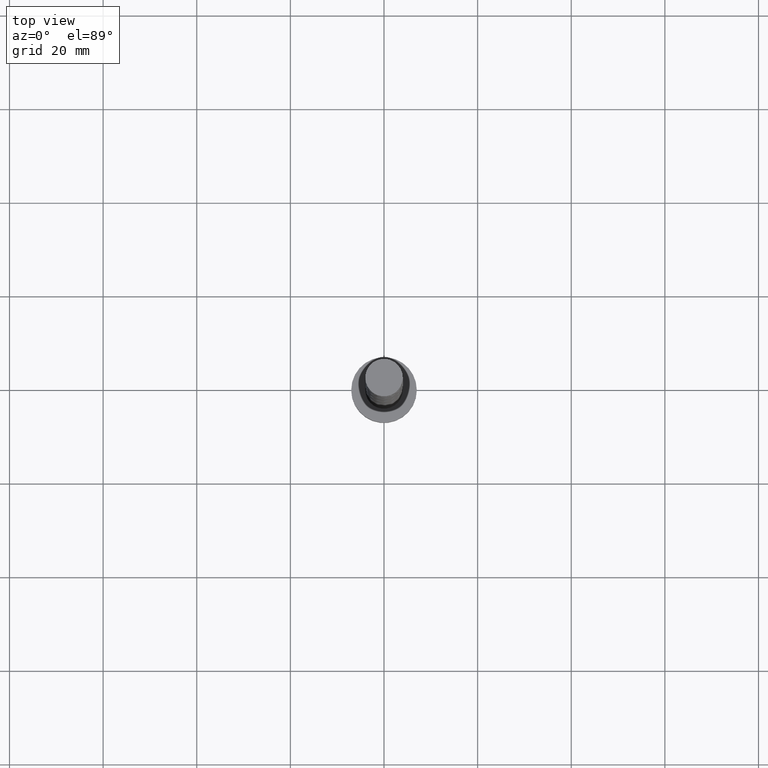
[diagram: clean part render]
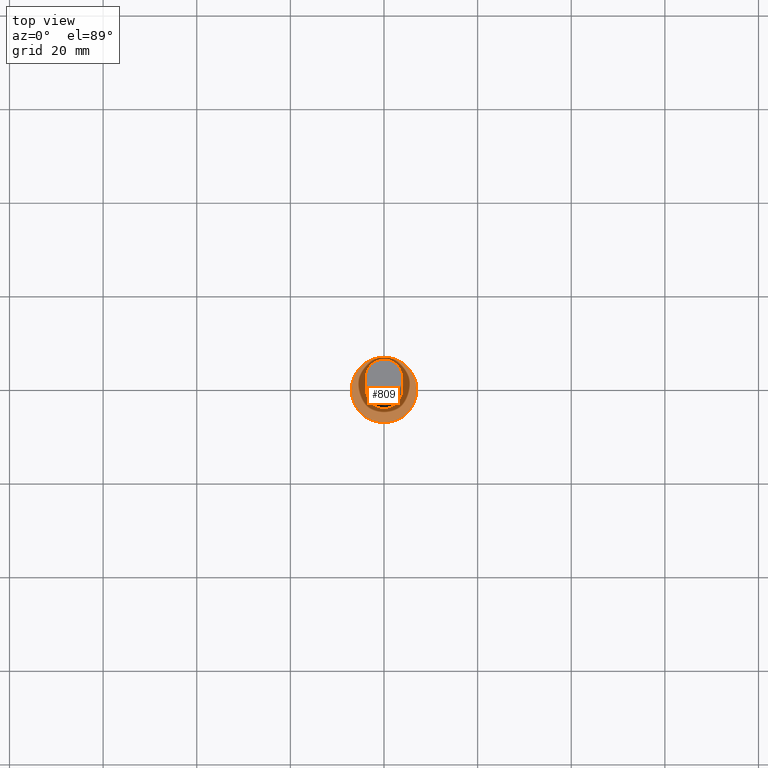
[diagram: same view with one face highlighted and labeled with its STEP entity id]
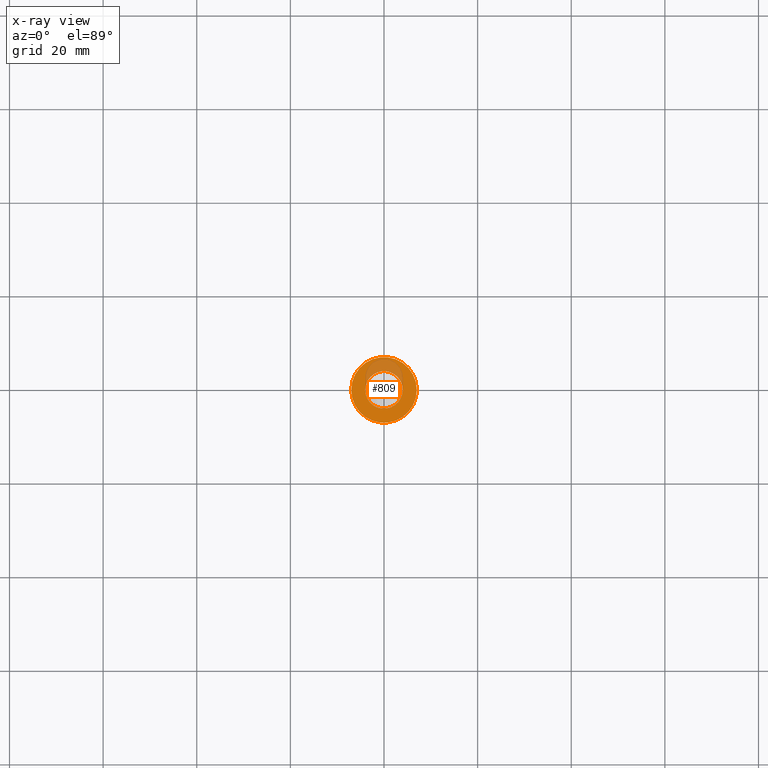
[diagram: x-ray of the same camera — body ghosted, the highlighted face saturated]
A machine part, top view. The second image highlights one B-rep face of the part: STEP entity #809.
The next image is the same camera in x-ray: the body ghosted, the highlighted face saturated — about 20% of this face is hidden behind the body in this view.
In plain terms, the highlighted planar face has unit normal (0, 0, 1).
Its self-contained STEP definition (entity closure, byte-faithful):
#5 = FACE_OUTER_BOUND ( 'NONE', #1239, .T. ) ;
#48 = CARTESIAN_POINT ( 'NONE',  ( 7.000000000000000000, 8.572527594031473190E-16, 5.000000000000000000 ) ) ;
#88 = CARTESIAN_POINT ( 'NONE',  ( 0.000000000000000000, 0.000000000000000000, 5.000000000000000000 ) ) ;
#171 = EDGE_CURVE ( 'NONE', #729, #1241, #445, .T. ) ;
#219 = DIRECTION ( 'NONE',  ( 1.000000000000000000, 0.000000000000000000, 0.000000000000000000 ) ) ;
#248 = CARTESIAN_POINT ( 'NONE',  ( 0.000000000000000000, 0.000000000000000000, 5.000000000000000000 ) ) ;
#315 = CARTESIAN_POINT ( 'NONE',  ( 0.000000000000000000, 0.000000000000000000, 5.000000000000000000 ) ) ;
#353 = DIRECTION ( 'NONE',  ( 0.000000000000000000, 0.000000000000000000, 1.000000000000000000 ) ) ;
#360 = AXIS2_PLACEMENT_3D ( 'NONE', #315, #1353, #1539 ) ;
#378 = VERTEX_POINT ( 'NONE', #1381 ) ;
#399 = EDGE_CURVE ( 'NONE', #1205, #378, #611, .T. ) ;
#403 = FACE_BOUND ( 'NONE', #995, .T. ) ;
#445 = CIRCLE ( 'NONE', #1183, 7.000000000000000000 ) ;
#486 = CARTESIAN_POINT ( 'NONE',  ( 0.000000000000000000, 0.000000000000000000, 5.000000000000000000 ) ) ;
#530 = AXIS2_PLACEMENT_3D ( 'NONE', #88, #590, #859 ) ;
#560 = CIRCLE ( 'NONE', #530, 4.000000000000000000 ) ;
#590 = DIRECTION ( 'NONE',  ( 0.000000000000000000, 0.000000000000000000, 1.000000000000000000 ) ) ;
#592 = ORIENTED_EDGE ( 'NONE', *, *, #1113, .T. ) ;
#611 = CIRCLE ( 'NONE', #1500, 4.000000000000000000 ) ;
#640 = AXIS2_PLACEMENT_3D ( 'NONE', #486, #353, #1276 ) ;
#646 = DIRECTION ( 'NONE',  ( 0.000000000000000000, 0.000000000000000000, 1.000000000000000000 ) ) ;
#658 = PLANE ( 'NONE',  #360 ) ;
#668 = CIRCLE ( 'NONE', #640, 7.000000000000000000 ) ;
#700 = DIRECTION ( 'NONE',  ( 1.000000000000000000, 0.000000000000000000, 0.000000000000000000 ) ) ;
#729 = VERTEX_POINT ( 'NONE', #48 ) ;
#803 = CARTESIAN_POINT ( 'NONE',  ( -7.000000000000000000, 0.000000000000000000, 5.000000000000000000 ) ) ;
#809 = ADVANCED_FACE ( 'NONE', ( #403, #5 ), #658, .T. ) ;
#859 = DIRECTION ( 'NONE',  ( 1.000000000000000000, 0.000000000000000000, 0.000000000000000000 ) ) ;
#900 = ORIENTED_EDGE ( 'NONE', *, *, #1159, .F. ) ;
#995 = EDGE_LOOP ( 'NONE', ( #900, #1668 ) ) ;
#1113 = EDGE_CURVE ( 'NONE', #1241, #729, #668, .T. ) ;
#1116 = CARTESIAN_POINT ( 'NONE',  ( 0.000000000000000000, 0.000000000000000000, 5.000000000000000000 ) ) ;
#1143 = ORIENTED_EDGE ( 'NONE', *, *, #171, .T. ) ;
#1159 = EDGE_CURVE ( 'NONE', #378, #1205, #560, .T. ) ;
#1183 = AXIS2_PLACEMENT_3D ( 'NONE', #248, #646, #219 ) ;
#1205 = VERTEX_POINT ( 'NONE', #1548 ) ;
#1239 = EDGE_LOOP ( 'NONE', ( #592, #1143 ) ) ;
#1241 = VERTEX_POINT ( 'NONE', #803 ) ;
#1276 = DIRECTION ( 'NONE',  ( 1.000000000000000000, 0.000000000000000000, 0.000000000000000000 ) ) ;
#1353 = DIRECTION ( 'NONE',  ( 0.000000000000000000, 0.000000000000000000, 1.000000000000000000 ) ) ;
#1381 = CARTESIAN_POINT ( 'NONE',  ( -4.000000000000000000, 0.000000000000000000, 5.000000000000000000 ) ) ;
#1408 = DIRECTION ( 'NONE',  ( 0.000000000000000000, 0.000000000000000000, 1.000000000000000000 ) ) ;
#1500 = AXIS2_PLACEMENT_3D ( 'NONE', #1116, #1408, #700 ) ;
#1539 = DIRECTION ( 'NONE',  ( 1.000000000000000000, 0.000000000000000000, -0.000000000000000000 ) ) ;
#1548 = CARTESIAN_POINT ( 'NONE',  ( 4.000000000000000000, 4.898587196589412829E-16, 5.000000000000000000 ) ) ;
#1668 = ORIENTED_EDGE ( 'NONE', *, *, #399, .F. ) ;